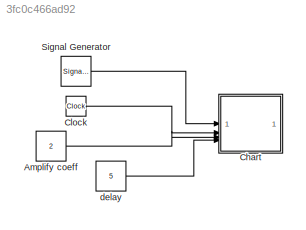
MODEL slx_3fc0c466ad92
KIND model
CONFIG AbsTol = auto
CONFIG EnableMultiTasking = off
CONFIG FixedStep = auto
CONFIG MaxStep = auto
CONFIG MinStep = auto
CONFIG RelTol = 1e-3
CONFIG SampleTimeConstraint = Unconstrained
CONFIG SolverName = VariableStepAuto
CONFIG StartTime = 0.0
CONFIG StopTime = 20
BLOCK [Constant] Amplify coeff
  Value = 2
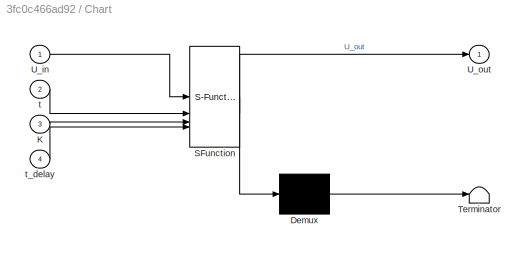
BLOCK [SubSystem] Chart
  ErrorFcn = Stateflow.Translate.translate
  PermitHierarchicalResolution = ExplicitOnly
  SFBlockType = Chart
  TreatAsAtomicUnit = on
BLOCK [Demux] Chart/ Demux 
  Outputs = 1
BLOCK [S-Function] Chart/ SFunction 
  EnableBusSupport = on
  FunctionName = sf_sfun
  PortCounts = [4 2]
  SFcnIsStateOwnerBlock = off
  SFunctionDeploymentMode = off
  Tag = Stateflow S-Function 3
BLOCK [Terminator] Chart/ Terminator 
BLOCK [Inport] Chart/K
  Port = 3
BLOCK [Inport] Chart/U_in
BLOCK [Outport] Chart/U_out
BLOCK [Inport] Chart/t
  Port = 2
BLOCK [Inport] Chart/t_delay
  Port = 4
BLOCK [Clock] Clock
BLOCK [SignalGenerator] Signal Generator
  Units = rad/sec
BLOCK [Constant] delay
  Value = 5
LINE Amplify coeff:1 -> Chart:3
LINE Clock:1 -> Chart:2
LINE Signal Generator:1 -> Chart:1
LINE delay:1 -> Chart:4
CHART Chart states=2 transitions=4
  STATE_LABEL 'Delay/\nU_out = 0\n'
  STATE_LABEL 'Amplify/\nU_out = U_in * K'
CHART  states=0 transitions=0
